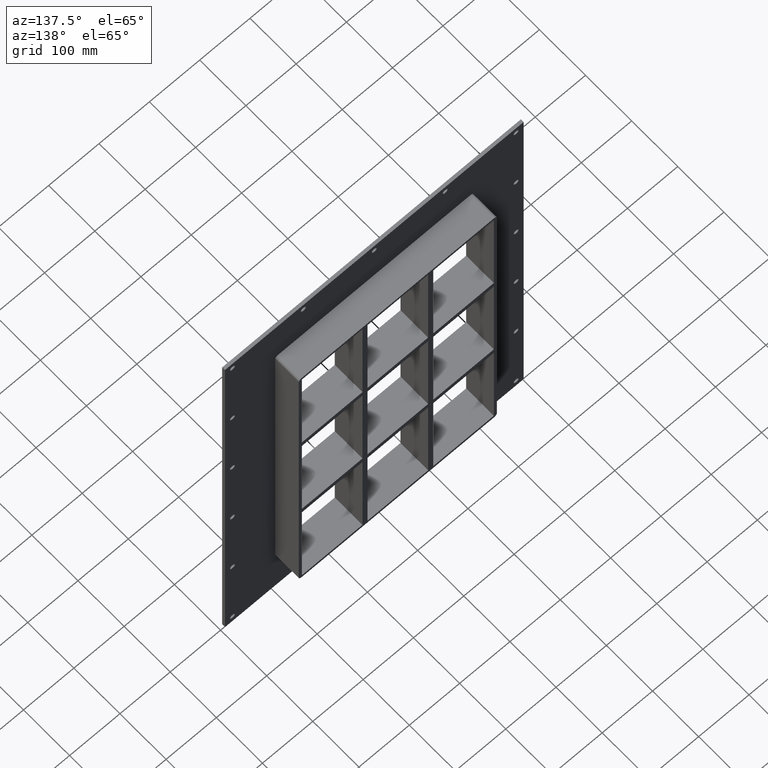
[diagram: clean part render]
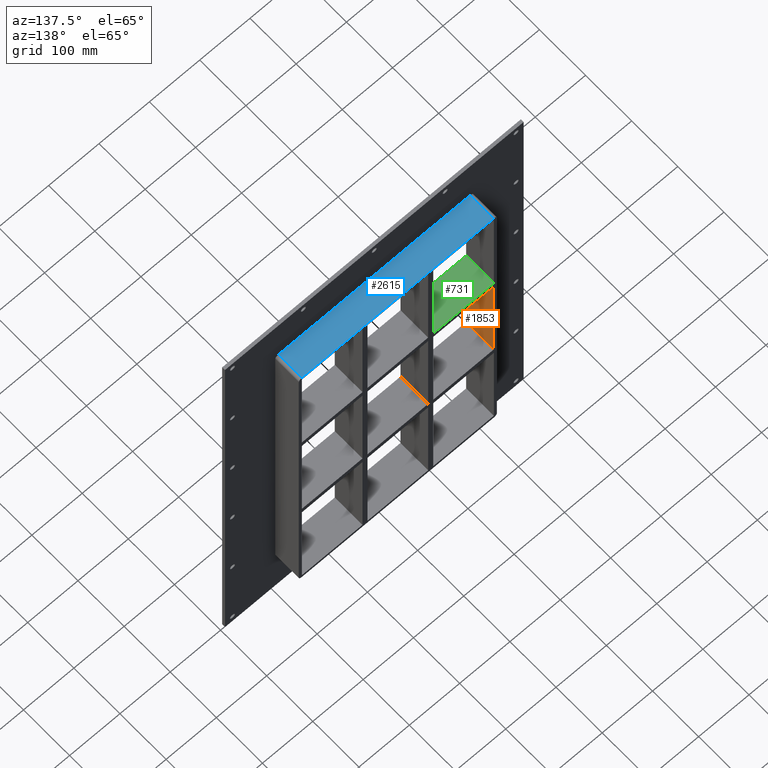
[diagram: same view with three faces highlighted in distinct colors, each labeled with its STEP entity id]
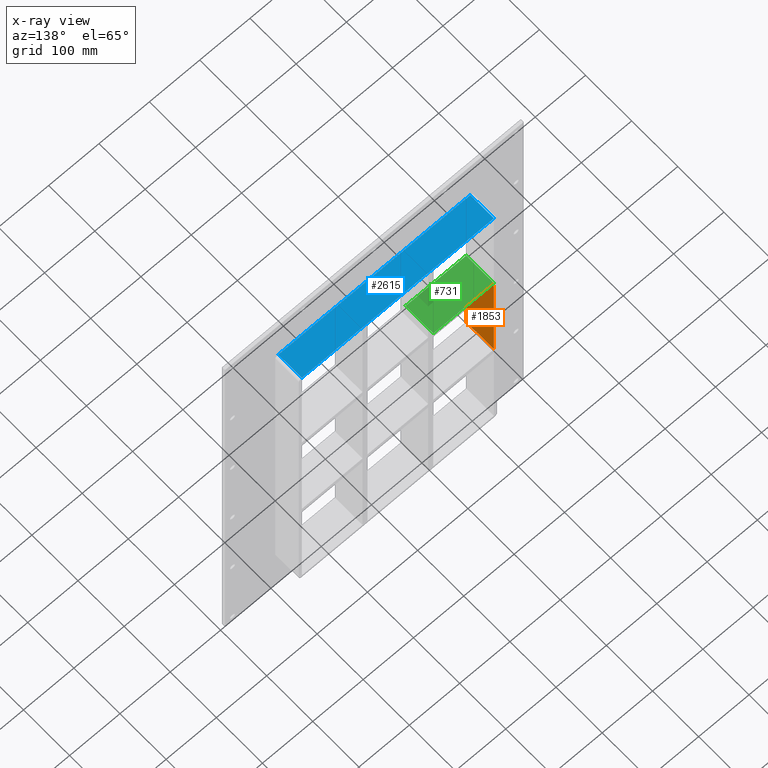
[diagram: x-ray of the same camera — body ghosted, the three highlighted faces saturated]
A machine part, auxiliary view with three faces highlighted in distinct colors.
The next image is the same camera in x-ray (body ghosted, the three faces saturated) — at least one of them is partly hidden behind the body in this view.
Their STEP definitions:

[orange] entity #1853 — the highlighted planar face has unit normal (-1, 0, 0).
#587=CARTESIAN_POINT('',(-190.74999999999974,-3.0,108.99999999999068));
#588=VERTEX_POINT('',#587);
#595=CARTESIAN_POINT('',(-190.74999999999974,57.0,108.99999999999068));
#596=VERTEX_POINT('',#595);
#597=CARTESIAN_POINT('',(-190.75000000000006,57.000000000000007,108.99999999999069));
#598=DIRECTION('',(0.0,-1.0,0.0));
#599=VECTOR('',#598,60.000000000000007);
#600=LINE('',#597,#599);
#601=EDGE_CURVE('',#596,#588,#600,.T.);
#1135=CARTESIAN_POINT('',(-190.74999999999974,57.0,-109.00000000000006));
#1136=VERTEX_POINT('',#1135);
#1137=CARTESIAN_POINT('',(-190.75000000000006,57.0,108.99999999999065));
#1138=DIRECTION('',(0.0,0.0,-1.0));
#1139=VECTOR('',#1138,217.99999999999071);
#1140=LINE('',#1137,#1139);
#1141=EDGE_CURVE('',#596,#1136,#1140,.T.);
#1618=CARTESIAN_POINT('',(-190.74999999999974,-3.0,-109.00000000000006));
#1619=VERTEX_POINT('',#1618);
#1626=CARTESIAN_POINT('',(-190.75000000000006,-3.0,-109.00000000000006));
#1627=DIRECTION('',(0.0,0.0,1.0));
#1628=VECTOR('',#1627,217.99999999999071);
#1629=LINE('',#1626,#1628);
#1630=EDGE_CURVE('',#1619,#588,#1629,.T.);
#1832=CARTESIAN_POINT('',(-190.75000000000006,-3.0,-109.00000000000006));
#1833=DIRECTION('',(0.0,1.0,0.0));
#1834=VECTOR('',#1833,60.000000000000007);
#1835=LINE('',#1832,#1834);
#1836=EDGE_CURVE('',#1619,#1136,#1835,.T.);
#1842=CARTESIAN_POINT('',(-190.75000000000006,0.0,-339.00000000000006));
#1843=DIRECTION('',(-1.0,0.0,0.0));
#1844=DIRECTION('',(0.0,0.0,1.0));
#1845=AXIS2_PLACEMENT_3D('',#1842,#1843,#1844);
#1846=PLANE('',#1845);
#1847=ORIENTED_EDGE('',*,*,#601,.T.);
#1848=ORIENTED_EDGE('',*,*,#1630,.F.);
#1849=ORIENTED_EDGE('',*,*,#1836,.T.);
#1850=ORIENTED_EDGE('',*,*,#1141,.F.);
#1851=EDGE_LOOP('',(#1847,#1848,#1849,#1850));
#1852=FACE_OUTER_BOUND('',#1851,.T.);
#1853=ADVANCED_FACE('',(#1852),#1846,.F.);

[blue] entity #2615 — the highlighted planar face has unit normal (0, 0, 1).
#1101=CARTESIAN_POINT('',(-190.75000000000006,57.0,345.00000000000006));
#1102=VERTEX_POINT('',#1101);
#1110=CARTESIAN_POINT('',(190.75,57.0,345.00000000000006));
#1111=VERTEX_POINT('',#1110);
#1112=CARTESIAN_POINT('',(-190.75000000000006,57.0,345.00000000000006));
#1113=DIRECTION('',(1.0,0.0,0.0));
#1114=VECTOR('',#1113,381.5);
#1115=LINE('',#1112,#1114);
#1116=EDGE_CURVE('',#1102,#1111,#1115,.T.);
#2065=CARTESIAN_POINT('',(190.75,6.000000000000001,345.00000000000006));
#2066=VERTEX_POINT('',#2065);
#2074=CARTESIAN_POINT('',(-190.75000000000006,6.000000000000001,345.00000000000006));
#2075=VERTEX_POINT('',#2074);
#2076=CARTESIAN_POINT('',(-190.75000000000006,6.000000000000001,345.00000000000006));
#2077=DIRECTION('',(1.0,0.0,0.0));
#2078=VECTOR('',#2077,381.50000000000006);
#2079=LINE('',#2076,#2078);
#2080=EDGE_CURVE('',#2075,#2066,#2079,.T.);
#2379=CARTESIAN_POINT('',(190.75,57.0,345.00000000000006));
#2380=DIRECTION('',(0.0,-1.0,0.0));
#2381=VECTOR('',#2380,51.0);
#2382=LINE('',#2379,#2381);
#2383=EDGE_CURVE('',#1111,#2066,#2382,.T.);
#2593=CARTESIAN_POINT('',(-190.75000000000006,6.000000000000001,345.00000000000006));
#2594=DIRECTION('',(0.0,1.0,0.0));
#2595=VECTOR('',#2594,51.0);
#2596=LINE('',#2593,#2595);
#2597=EDGE_CURVE('',#2075,#1102,#2596,.T.);
#2604=CARTESIAN_POINT('',(-196.75000000000009,0.0,345.00000000000006));
#2605=DIRECTION('',(0.0,0.0,1.0));
#2606=DIRECTION('',(1.0,0.0,0.0));
#2607=AXIS2_PLACEMENT_3D('',#2604,#2605,#2606);
#2608=PLANE('',#2607);
#2609=ORIENTED_EDGE('',*,*,#2080,.T.);
#2610=ORIENTED_EDGE('',*,*,#2383,.F.);
#2611=ORIENTED_EDGE('',*,*,#1116,.F.);
#2612=ORIENTED_EDGE('',*,*,#2597,.F.);
#2613=EDGE_LOOP('',(#2609,#2610,#2611,#2612));
#2614=FACE_OUTER_BOUND('',#2613,.T.);
#2615=ADVANCED_FACE('',(#2614),#2608,.T.);

[green] entity #731 — the highlighted planar face has unit normal (0, 0, 1).
#692=CARTESIAN_POINT('',(-190.74999999999974,-3.0,120.99999999999994));
#693=DIRECTION('',(0.0,0.0,1.0));
#694=DIRECTION('',(1.0,0.0,0.0));
#695=AXIS2_PLACEMENT_3D('',#692,#693,#694);
#696=PLANE('',#695);
#697=CARTESIAN_POINT('',(-70.250000000001421,57.0,120.99999999999994));
#698=VERTEX_POINT('',#697);
#699=CARTESIAN_POINT('',(-70.250000000001421,-3.0,120.99999999999994));
#700=VERTEX_POINT('',#699);
#701=CARTESIAN_POINT('',(-70.250000000001421,57.0,120.99999999999994));
#702=DIRECTION('',(0.0,-1.0,0.0));
#703=VECTOR('',#702,60.0);
#704=LINE('',#701,#703);
#705=EDGE_CURVE('',#698,#700,#704,.T.);
#706=ORIENTED_EDGE('',*,*,#705,.F.);
#707=CARTESIAN_POINT('',(-190.74999999999974,57.0,120.99999999999994));
#708=VERTEX_POINT('',#707);
#709=CARTESIAN_POINT('',(-190.74999999999974,57.0,120.99999999999994));
#710=DIRECTION('',(1.0,0.0,0.0));
#711=VECTOR('',#710,120.49999999999834);
#712=LINE('',#709,#711);
#713=EDGE_CURVE('',#708,#698,#712,.T.);
#714=ORIENTED_EDGE('',*,*,#713,.F.);
#715=CARTESIAN_POINT('',(-190.74999999999974,-3.0,120.99999999999994));
#716=VERTEX_POINT('',#715);
#717=CARTESIAN_POINT('',(-190.75000000000006,-3.0,120.99999999999994));
#718=DIRECTION('',(0.0,1.0,0.0));
#719=VECTOR('',#718,60.000000000000007);
#720=LINE('',#717,#719);
#721=EDGE_CURVE('',#716,#708,#720,.T.);
#722=ORIENTED_EDGE('',*,*,#721,.F.);
#723=CARTESIAN_POINT('',(-190.74999999999974,-3.0,120.99999999999994));
#724=DIRECTION('',(1.0,0.0,0.0));
#725=VECTOR('',#724,120.49999999999834);
#726=LINE('',#723,#725);
#727=EDGE_CURVE('',#716,#700,#726,.T.);
#728=ORIENTED_EDGE('',*,*,#727,.T.);
#729=EDGE_LOOP('',(#706,#714,#722,#728));
#730=FACE_OUTER_BOUND('',#729,.T.);
#731=ADVANCED_FACE('',(#730),#696,.T.);